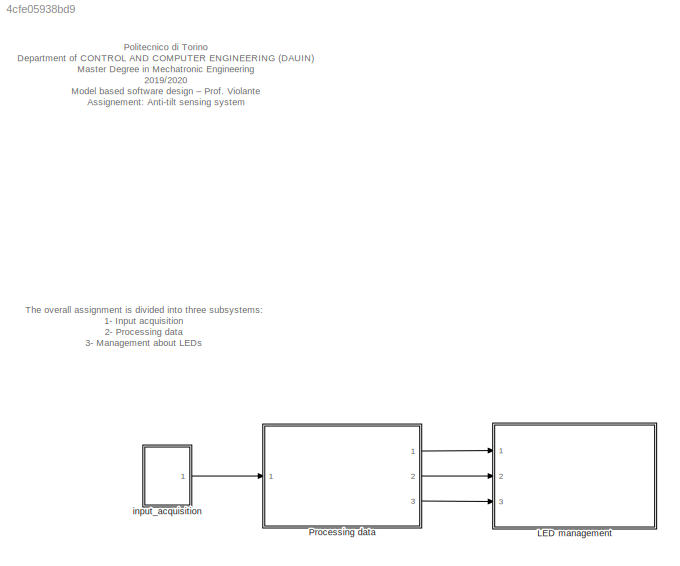
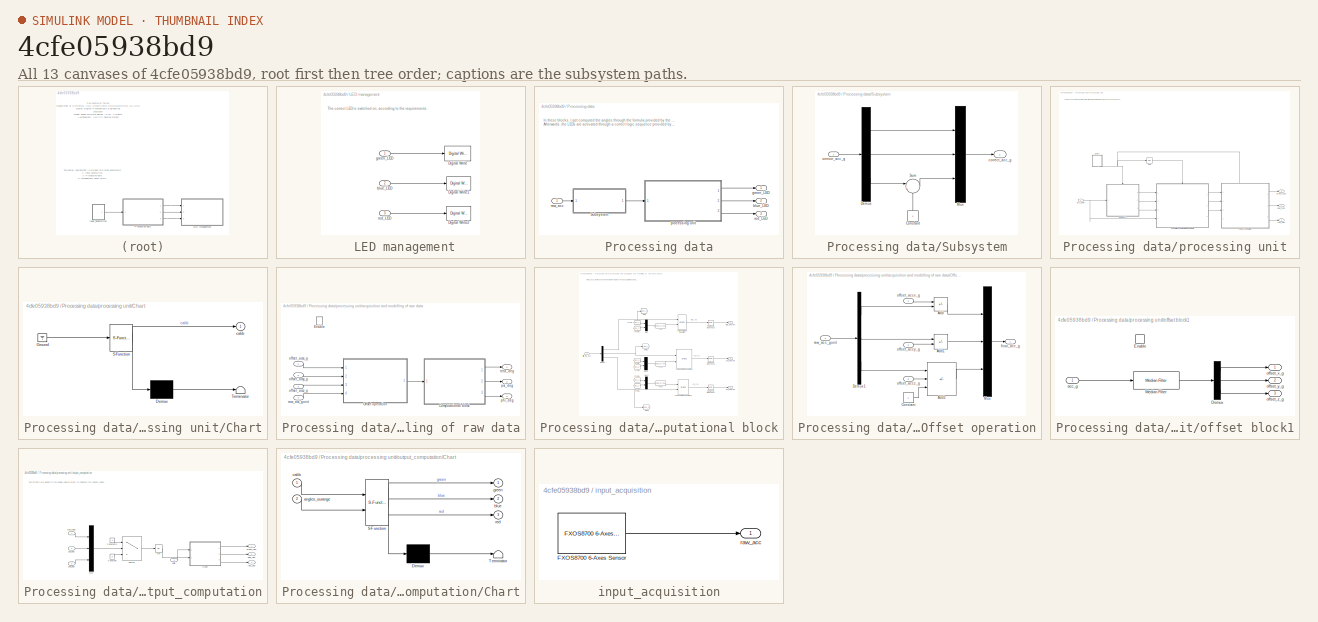
[diagram: thumbnail index - all 13 canvases of the model, root first then tree order]
MODEL slx_4cfe05938bd9
KIND model
CONFIG AbsTol = auto
CONFIG EnableMultiTasking = on
CONFIG FixedStep = 0.1
CONFIG MaxStep = auto
CONFIG MinStep = auto
CONFIG RelTol = 1e-3
CONFIG SampleTimeConstraint = Unconstrained
CONFIG Solver = FixedStepDiscrete
CONFIG SolverName = FixedStepDiscrete
CONFIG StartTime = 0.0
CONFIG StopTime = inf
BLOCK [SubSystem]  LED management
  Ports = [3]
  RequestExecContextInheritance = off
BLOCK [Reference]  LED management/Digital Write  REF=frdmk64flib/Digital Write
  Ports = [1]
  SourceBlock = frdmk64flib/Digital Write
  SourceProductBaseCode = EC_FRDM_K64F
  SourceType = freedomk64f.DigitalWrite
BLOCK [Reference]  LED management/Digital Write1  REF=frdmk64flib/Digital Write
  Ports = [1]
  SourceBlock = frdmk64flib/Digital Write
  SourceProductBaseCode = EC_FRDM_K64F
  SourceType = freedomk64f.DigitalWrite
BLOCK [Reference]  LED management/Digital Write2  REF=frdmk64flib/Digital Write
  Ports = [1]
  SourceBlock = frdmk64flib/Digital Write
  SourceProductBaseCode = EC_FRDM_K64F
  SourceType = freedomk64f.DigitalWrite
BLOCK [Inport]  LED management/blue_LED
  Port = 2
BLOCK [Inport]  LED management/green_LED
BLOCK [Inport]  LED management/red_LED
  Port = 3
BLOCK [SubSystem] Processing data
  Ports = [1, 3]
  RequestExecContextInheritance = off
BLOCK [SubSystem] Processing data/Subsystem
  Ports = [1, 1]
  RequestExecContextInheritance = off
BLOCK [Constant] Processing data/Subsystem/Constant
  NameLocation = right
BLOCK [Demux] Processing data/Subsystem/Demux
  Outputs = 3
  Ports = [1, 3]
BLOCK [Mux] Processing data/Subsystem/Mux
  DisplayOption = bar
  Inputs = 3
  Ports = [3, 1]
BLOCK [Sum] Processing data/Subsystem/Sum
  Inputs = |+-
  Ports = [2, 1]
BLOCK [Outport] Processing data/Subsystem/correct_acc_g
BLOCK [Inport] Processing data/Subsystem/sensor_acc_g
BLOCK [Outport] Processing data/blue_LED
  Port = 2
BLOCK [Outport] Processing data/green_LED
BLOCK [SubSystem] Processing data/processing unit
  Ports = [1, 3]
  RequestExecContextInheritance = off
BLOCK [SubSystem] Processing data/processing unit/Chart
  ErrorFcn = Stateflow.Translate.translate
  NameLocation = left
  PermitHierarchicalResolution = ExplicitOnly
  PortSchema = {"entries":[{"content":{"sides":[{"content":{"connectorIds":[]},"type":"ConnectorPlacement.EquallySpacedRectSide","uuid":"849f233e-f388-4235-a763-39289e6833f4"},{"content":{"connectorIds":[],"side":"RIGHT"},"type":"ConnectorPlacement.EquallySpacedRectSide","uuid":"02f40bd9-b98f-494b-865f-ff408e26e3ae"},{"content":{"connectorIds":["Out1"],"side":"TOP"},"type":"ConnectorPlacement.EquallySpacedRectSi...<+237ch>
  Ports = [0, 1]
  RequestExecContextInheritance = off
  SFBlockType = Chart
  TreatAsAtomicUnit = on
BLOCK [Demux] Processing data/processing unit/Chart/ Demux 
  Outputs = 1
  Ports = [1, 1]
BLOCK [Ground] Processing data/processing unit/Chart/ Ground 
BLOCK [S-Function] Processing data/processing unit/Chart/ SFunction 
  EnableBusSupport = on
  FunctionName = sf_sfun
  PortCounts = [1 2]
  Ports = [1, 2]
  SFcnIsStateOwnerBlock = off
  SFunctionDeploymentMode = off
  Tag = Stateflow S-Function 1
BLOCK [Terminator] Processing data/processing unit/Chart/ Terminator 
BLOCK [Outport] Processing data/processing unit/Chart/calib
BLOCK [Logic] Processing data/processing unit/NOT
  AllPortsSameDT = off
  IconShape = distinctive
  Operator = NOT
  OutDataTypeStr = boolean
  Ports = [1, 1]
BLOCK [Inport] Processing data/processing unit/acc_gunit
BLOCK [SubSystem] Processing data/processing unit/acquisition and modelling of raw data
  Ports = [4, 3, 1]
  RequestExecContextInheritance = off
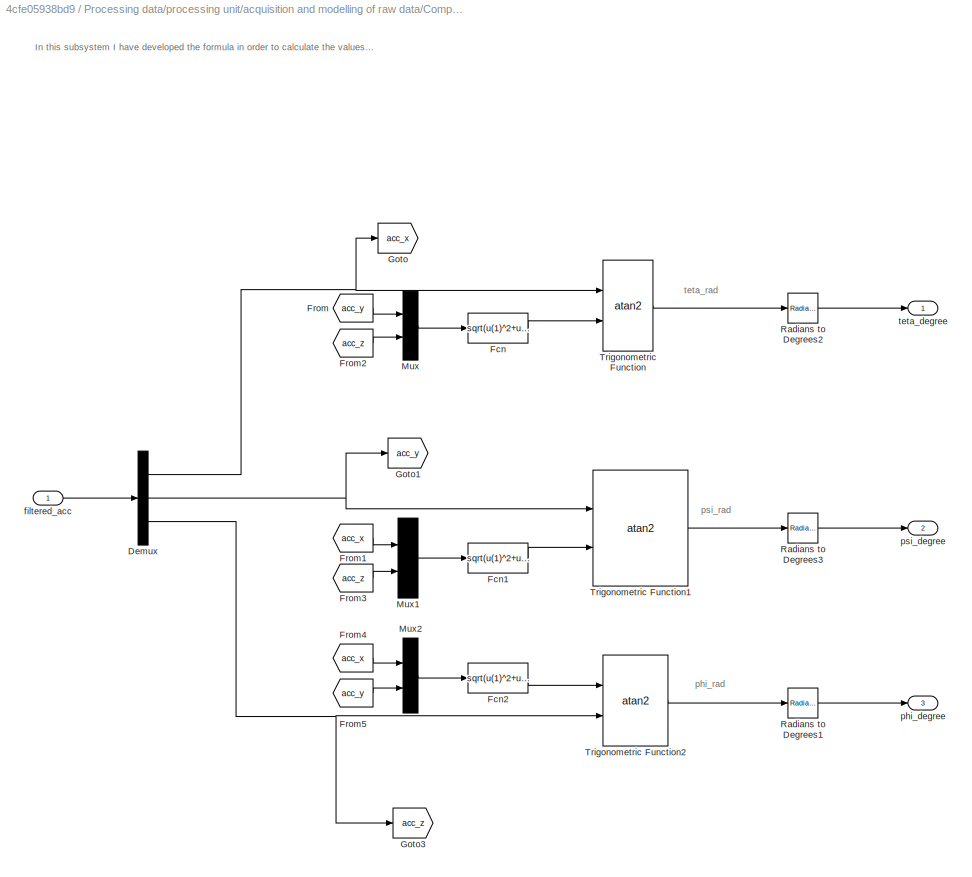
BLOCK [SubSystem] Processing data/processing unit/acquisition and modelling of raw data/Computational block
  Ports = [1, 3]
  RequestExecContextInheritance = off
BLOCK [Demux] Processing data/processing unit/acquisition and modelling of raw data/Computational block/Demux
  Outputs = 3
  Ports = [1, 3]
BLOCK [Fcn] Processing data/processing unit/acquisition and modelling of raw data/Computational block/Fcn
  Expr = sqrt(u(1)^2+u(2)^2)
BLOCK [Fcn] Processing data/processing unit/acquisition and modelling of raw data/Computational block/Fcn1
  Expr = sqrt(u(1)^2+u(2)^2)
BLOCK [Fcn] Processing data/processing unit/acquisition and modelling of raw data/Computational block/Fcn2
  Expr = sqrt(u(1)^2+u(2)^2)
BLOCK [From] Processing data/processing unit/acquisition and modelling of raw data/Computational block/From
  GotoTag = acc_y
BLOCK [From] Processing data/processing unit/acquisition and modelling of raw data/Computational block/From1
  GotoTag = acc_x
BLOCK [From] Processing data/processing unit/acquisition and modelling of raw data/Computational block/From2
  GotoTag = acc_z
BLOCK [From] Processing data/processing unit/acquisition and modelling of raw data/Computational block/From3
  GotoTag = acc_z
BLOCK [From] Processing data/processing unit/acquisition and modelling of raw data/Computational block/From4
  GotoTag = acc_x
BLOCK [From] Processing data/processing unit/acquisition and modelling of raw data/Computational block/From5
  GotoTag = acc_y
BLOCK [Goto] Processing data/processing unit/acquisition and modelling of raw data/Computational block/Goto
  GotoTag = acc_x
BLOCK [Goto] Processing data/processing unit/acquisition and modelling of raw data/Computational block/Goto1
  GotoTag = acc_y
BLOCK [Goto] Processing data/processing unit/acquisition and modelling of raw data/Computational block/Goto3
  GotoTag = acc_z
BLOCK [Mux] Processing data/processing unit/acquisition and modelling of raw data/Computational block/Mux
  DisplayOption = bar
  Inputs = 2
  Ports = [2, 1]
BLOCK [Mux] Processing data/processing unit/acquisition and modelling of raw data/Computational block/Mux1
  DisplayOption = bar
  Inputs = 2
  Ports = [2, 1]
BLOCK [Mux] Processing data/processing unit/acquisition and modelling of raw data/Computational block/Mux2
  DisplayOption = bar
  Inputs = 2
  Ports = [2, 1]
BLOCK [Reference] Processing data/processing unit/acquisition and modelling of raw data/Computational block/Radians to Degrees1  REF=simulink_extras/Transformations/Radians
to Degrees
  Ports = [1, 1]
  SourceBlock = simulink_extras/Transformations/Radians\nto Degrees
  SourceProductBaseCode = SL
  SourceType = RadiansToDegrees
BLOCK [Reference] Processing data/processing unit/acquisition and modelling of raw data/Computational block/Radians to Degrees2  REF=simulink_extras/Transformations/Radians
to Degrees
  Ports = [1, 1]
  SourceBlock = simulink_extras/Transformations/Radians\nto Degrees
  SourceProductBaseCode = SL
  SourceType = RadiansToDegrees
BLOCK [Reference] Processing data/processing unit/acquisition and modelling of raw data/Computational block/Radians to Degrees3  REF=simulink_extras/Transformations/Radians
to Degrees
  Ports = [1, 1]
  SourceBlock = simulink_extras/Transformations/Radians\nto Degrees
  SourceProductBaseCode = SL
  SourceType = RadiansToDegrees
BLOCK [Trigonometry] Processing data/processing unit/acquisition and modelling of raw data/Computational block/Trigonometric Function
  Operator = atan2
  Ports = [2, 1]
BLOCK [Trigonometry] Processing data/processing unit/acquisition and modelling of raw data/Computational block/Trigonometric Function1
  Operator = atan2
  Ports = [2, 1]
BLOCK [Trigonometry] Processing data/processing unit/acquisition and modelling of raw data/Computational block/Trigonometric Function2
  Operator = atan2
  Ports = [2, 1]
BLOCK [Inport] Processing data/processing unit/acquisition and modelling of raw data/Computational block/filtered_acc
BLOCK [Outport] Processing data/processing unit/acquisition and modelling of raw data/Computational block/phi_degree
  Port = 3
BLOCK [Outport] Processing data/processing unit/acquisition and modelling of raw data/Computational block/psi_degree
  Port = 2
BLOCK [Outport] Processing data/processing unit/acquisition and modelling of raw data/Computational block/teta_degree
BLOCK [EnablePort] Processing data/processing unit/acquisition and modelling of raw data/Enable
  Ports = []
BLOCK [SubSystem] Processing data/processing unit/acquisition and modelling of raw data/Offset operation
  Ports = [4, 1]
  RequestExecContextInheritance = off
BLOCK [Sum] Processing data/processing unit/acquisition and modelling of raw data/Offset operation/Add
  IconShape = rectangular
  Inputs = -+
  Ports = [2, 1]
BLOCK [Sum] Processing data/processing unit/acquisition and modelling of raw data/Offset operation/Add1
  IconShape = rectangular
  Inputs = +-
  Ports = [2, 1]
BLOCK [Sum] Processing data/processing unit/acquisition and modelling of raw data/Offset operation/Add2
  IconShape = rectangular
  Inputs = +-+
  Ports = [3, 1]
BLOCK [Constant] Processing data/processing unit/acquisition and modelling of raw data/Offset operation/Constant
BLOCK [Demux] Processing data/processing unit/acquisition and modelling of raw data/Offset operation/Demux1
  Outputs = 3
  Ports = [1, 3]
BLOCK [Mux] Processing data/processing unit/acquisition and modelling of raw data/Offset operation/Mux
  DisplayOption = bar
  Inputs = 3
  Ports = [3, 1]
BLOCK [Outport] Processing data/processing unit/acquisition and modelling of raw data/Offset operation/final_acc_g
BLOCK [Inport] Processing data/processing unit/acquisition and modelling of raw data/Offset operation/offset_accx_g
BLOCK [Inport] Processing data/processing unit/acquisition and modelling of raw data/Offset operation/offset_accy_g
  Port = 2
BLOCK [Inport] Processing data/processing unit/acquisition and modelling of raw data/Offset operation/offset_accz_g
  Port = 3
BLOCK [Inport] Processing data/processing unit/acquisition and modelling of raw data/Offset operation/raw_acc_gunit
  Port = 4
BLOCK [Inport] Processing data/processing unit/acquisition and modelling of raw data/offset_accx_g
BLOCK [Inport] Processing data/processing unit/acquisition and modelling of raw data/offset_accy_g
  Port = 2
BLOCK [Inport] Processing data/processing unit/acquisition and modelling of raw data/offset_accz_g
  Port = 3
BLOCK [Outport] Processing data/processing unit/acquisition and modelling of raw data/phi_deg
  Port = 3
BLOCK [Outport] Processing data/processing unit/acquisition and modelling of raw data/psi_deg
  Port = 2
BLOCK [Inport] Processing data/processing unit/acquisition and modelling of raw data/raw_acc_gunit
  Port = 4
BLOCK [Outport] Processing data/processing unit/acquisition and modelling of raw data/teta_deg
BLOCK [Outport] Processing data/processing unit/blue_LED
  Port = 2
BLOCK [Outport] Processing data/processing unit/green_LED
BLOCK [SubSystem] Processing data/processing unit/offset block1
  Ports = [1, 3, 1]
  RequestExecContextInheritance = off
BLOCK [Demux] Processing data/processing unit/offset block1/Demux
  Outputs = 3
  Ports = [1, 3]
BLOCK [EnablePort] Processing data/processing unit/offset block1/Enable
  Ports = []
BLOCK [Reference] Processing data/processing unit/offset block1/Median Filter  REF=dspstat3/Median
Filter
  Ports = [1, 1]
  SourceBlock = dspstat3/Median\nFilter
  SourceProductBaseCode = DS
  SourceType = dsp.MedianFilter
BLOCK [Inport] Processing data/processing unit/offset block1/acc_g
BLOCK [Outport] Processing data/processing unit/offset block1/offset_x_g
BLOCK [Outport] Processing data/processing unit/offset block1/offset_y_g
  Port = 2
BLOCK [Outport] Processing data/processing unit/offset block1/offset_z_g
  Port = 3
BLOCK [SubSystem] Processing data/processing unit/output_computation
  PortSchema = {"entries":[{"content":{"sides":[{"content":{"connectorIds":["In1","In2","In3"]},"type":"ConnectorPlacement.EquallySpacedRectSide","uuid":"60aea4be-a06d-4eda-a7bc-981b750d10d1"},{"content":{"connectorIds":["Out1","Out2","Out3"],"side":"RIGHT"},"type":"ConnectorPlacement.EquallySpacedRectSide","uuid":"1715f949-f62d-450d-8914-9423294c064a"},{"content":{"connectorIds":["In4"],"side":"TOP"},"type":"Co...<+273ch>
  Ports = [4, 3]
  RequestExecContextInheritance = off
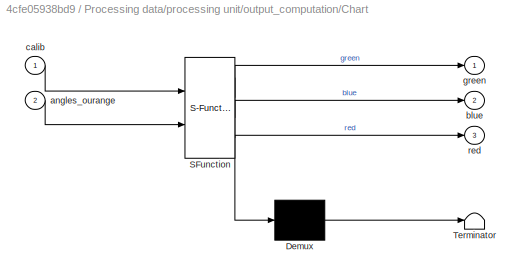
BLOCK [SubSystem] Processing data/processing unit/output_computation/Chart
  ErrorFcn = Stateflow.Translate.translate
  PermitHierarchicalResolution = ExplicitOnly
  PortSchema = {"entries":[{"content":{"sides":[{"content":{"connectorIds":["In2","In1"]},"type":"ConnectorPlacement.EquallySpacedRectSide","uuid":"faf833d6-594c-410a-add6-5ce55fbfaff1"},{"content":{"connectorIds":["Out1","Out2","Out3"],"side":"RIGHT"},"type":"ConnectorPlacement.EquallySpacedRectSide","uuid":"c32c7775-d168-4cbd-91e2-7224e6ac9991"},{"content":{"connectorIds":[],"side":"TOP"},"type":"ConnectorPlac...<+262ch>
  Ports = [2, 3]
  RequestExecContextInheritance = off
  SFBlockType = Chart
  TreatAsAtomicUnit = on
BLOCK [Demux] Processing data/processing unit/output_computation/Chart/ Demux 
  Outputs = 1
  Ports = [1, 1]
BLOCK [S-Function] Processing data/processing unit/output_computation/Chart/ SFunction 
  EnableBusSupport = on
  FunctionName = sf_sfun
  PortCounts = [2 4]
  Ports = [2, 4]
  SFcnIsStateOwnerBlock = off
  SFunctionDeploymentMode = off
  Tag = Stateflow S-Function 2
BLOCK [Terminator] Processing data/processing unit/output_computation/Chart/ Terminator 
BLOCK [Inport] Processing data/processing unit/output_computation/Chart/angles_ourange
  Port = 2
BLOCK [Outport] Processing data/processing unit/output_computation/Chart/blue
  Port = 2
BLOCK [Inport] Processing data/processing unit/output_computation/Chart/calib
BLOCK [Outport] Processing data/processing unit/output_computation/Chart/green
BLOCK [Outport] Processing data/processing unit/output_computation/Chart/red
  Port = 3
BLOCK [Constant] Processing data/processing unit/output_computation/Constant
  Value = 0
BLOCK [Constant] Processing data/processing unit/output_computation/Constant1
BLOCK [Mux] Processing data/processing unit/output_computation/Mux
  DisplayOption = bar
  Inputs = 3
  Ports = [3, 1]
BLOCK [Logic] Processing data/processing unit/output_computation/OR
  AllPortsSameDT = off
  IconShape = distinctive
  Inputs = 1
  Operator = OR
  OutDataTypeStr = boolean
  Ports = [1, 1]
BLOCK [Switch] Processing data/processing unit/output_computation/Switch
  Criteria = u2 > Threshold
  InputSameDT = off
  SaturateOnIntegerOverflow = off
  Threshold = 15
BLOCK [Outport] Processing data/processing unit/output_computation/blue_LED
  Port = 2
BLOCK [Inport] Processing data/processing unit/output_computation/calib
  Port = 4
BLOCK [Outport] Processing data/processing unit/output_computation/green_LED
BLOCK [Inport] Processing data/processing unit/output_computation/phi_deg
  Port = 3
BLOCK [Inport] Processing data/processing unit/output_computation/psi_deg
  Port = 2
BLOCK [Outport] Processing data/processing unit/output_computation/red_LED
  Port = 3
BLOCK [Inport] Processing data/processing unit/output_computation/teta_deg
BLOCK [Outport] Processing data/processing unit/red_LED
  Port = 3
BLOCK [Inport] Processing data/raw_acc
BLOCK [Outport] Processing data/red_LED
  Port = 3
BLOCK [SubSystem] input_acquisition
  Ports = [0, 1]
  RequestExecContextInheritance = off
BLOCK [Reference] input_acquisition/FXOS8700 6-Axes Sensor  REF=frdmk64flib/FXOS8700 6-Axes Sensor
  Ports = [0, 1]
  SourceBlock = frdmk64flib/FXOS8700 6-Axes Sensor
  SourceProductBaseCode = EC_FRDM_K64F
  SourceType = freedomk64f.fxos8700
BLOCK [Outport] input_acquisition/raw_acc
ANNOTATION (root): Politecnico di Torino Department of CONTROL AND COMPUTER ENGINEERING (DAUIN) Master Degree in Mechatronic Engineering 2019/2020 Model based software design – Prof. Violante Assignement: Anti-tilt sensing system S277536- Marchionna Luca
ANNOTATION (root): The overall assignment is divided into three subsystems: 1- Input acquisition 2- Processing data 3- Management about LEDs
ANNOTATION  LED management: The correct LED is switched on, according to the requirements.
ANNOTATION Processing data: In these blocks, I get computed the angles through the formula provided by the text exercise. The acquisition data are driven towards the calibration block in order to provide a correct offset. In the normal mode, filtering and output computation have been performed. Afterwards, the LEDs are activated through a correct logic sequence provided by the stateflow. During the calibration only the blue ...<+131ch>
ANNOTATION Processing data/processing unit: The process starts and the calibration mode get begins. This sub-process is repeated for 20 seconds until the calibration goes off (calib=0). As we can see, the output computaion is denied for this time since no output needs. After the calibration step, the output computation can starts.
ANNOTATION Processing data/processing unit/acquisition and modelling of raw data/Computational block: phi_rad
ANNOTATION Processing data/processing unit/acquisition and modelling of raw data/Computational block: psi_rad
ANNOTATION Processing data/processing unit/acquisition and modelling of raw data/Computational block: teta_rad
ANNOTATION Processing data/processing unit/acquisition and modelling of raw data/Computational block: In this subsystem I have developed the formula in order to calculate the values about the angles. Furthermore, the final values are provided in degrees.
ANNOTATION Processing data/processing unit/output_computation: The offsets are added to the angles value in order to minimize the random noise. Furthermore, the corrected values are compared with the thresold voltage (15 degrees). In this way, we can highlights the angles that exceed this thresold value.
LINE  LED management/blue_LED:1 ->  LED management/Digital Write1:1
LINE  LED management/green_LED:1 ->  LED management/Digital Write:1
LINE  LED management/red_LED:1 ->  LED management/Digital Write2:1
LINE Processing data/Subsystem/Constant:1 -> Processing data/Subsystem/Sum:2
LINE Processing data/Subsystem/Demux:1 -> Processing data/Subsystem/Mux:1
LINE Processing data/Subsystem/Demux:2 -> Processing data/Subsystem/Mux:2
LINE Processing data/Subsystem/Demux:3 -> Processing data/Subsystem/Sum:1
LINE Processing data/Subsystem/Mux:1 -> Processing data/Subsystem/correct_acc_g:1
LINE Processing data/Subsystem/Sum:1 -> Processing data/Subsystem/Mux:3
LINE Processing data/Subsystem/sensor_acc_g:1 -> Processing data/Subsystem/Demux:1
LINE Processing data/Subsystem:1 -> Processing data/processing unit:1
NET Processing data/processing unit/Chart:1 -> Processing data/processing unit/NOT:1, Processing data/processing unit/offset block1:enable, Processing data/processing unit/output_computation:4
LINE Processing data/processing unit/NOT:1 -> Processing data/processing unit/acquisition and modelling of raw data:enable
NET Processing data/processing unit/acc_gunit:1 -> Processing data/processing unit/acquisition and modelling of raw data:4, Processing data/processing unit/offset block1:1
NET Processing data/processing unit/acquisition and modelling of raw data/Computational block/Demux:1 -> Processing data/processing unit/acquisition and modelling of raw data/Computational block/Goto:1, Processing data/processing unit/acquisition and modelling of raw data/Computational block/Trigonometric Function:1
NET Processing data/processing unit/acquisition and modelling of raw data/Computational block/Demux:2 -> Processing data/processing unit/acquisition and modelling of raw data/Computational block/Goto1:1, Processing data/processing unit/acquisition and modelling of raw data/Computational block/Trigonometric Function1:1
NET Processing data/processing unit/acquisition and modelling of raw data/Computational block/Demux:3 -> Processing data/processing unit/acquisition and modelling of raw data/Computational block/Goto3:1, Processing data/processing unit/acquisition and modelling of raw data/Computational block/Trigonometric Function2:2
LINE Processing data/processing unit/acquisition and modelling of raw data/Computational block/Fcn1:1 -> Processing data/processing unit/acquisition and modelling of raw data/Computational block/Trigonometric Function1:2
LINE Processing data/processing unit/acquisition and modelling of raw data/Computational block/Fcn2:1 -> Processing data/processing unit/acquisition and modelling of raw data/Computational block/Trigonometric Function2:1
LINE Processing data/processing unit/acquisition and modelling of raw data/Computational block/Fcn:1 -> Processing data/processing unit/acquisition and modelling of raw data/Computational block/Trigonometric Function:2
LINE Processing data/processing unit/acquisition and modelling of raw data/Computational block/From1:1 -> Processing data/processing unit/acquisition and modelling of raw data/Computational block/Mux1:1
LINE Processing data/processing unit/acquisition and modelling of raw data/Computational block/From2:1 -> Processing data/processing unit/acquisition and modelling of raw data/Computational block/Mux:2
LINE Processing data/processing unit/acquisition and modelling of raw data/Computational block/From3:1 -> Processing data/processing unit/acquisition and modelling of raw data/Computational block/Mux1:2
LINE Processing data/processing unit/acquisition and modelling of raw data/Computational block/From4:1 -> Processing data/processing unit/acquisition and modelling of raw data/Computational block/Mux2:1
LINE Processing data/processing unit/acquisition and modelling of raw data/Computational block/From5:1 -> Processing data/processing unit/acquisition and modelling of raw data/Computational block/Mux2:2
LINE Processing data/processing unit/acquisition and modelling of raw data/Computational block/From:1 -> Processing data/processing unit/acquisition and modelling of raw data/Computational block/Mux:1
LINE Processing data/processing unit/acquisition and modelling of raw data/Computational block/Mux1:1 -> Processing data/processing unit/acquisition and modelling of raw data/Computational block/Fcn1:1
LINE Processing data/processing unit/acquisition and modelling of raw data/Computational block/Mux2:1 -> Processing data/processing unit/acquisition and modelling of raw data/Computational block/Fcn2:1
LINE Processing data/processing unit/acquisition and modelling of raw data/Computational block/Mux:1 -> Processing data/processing unit/acquisition and modelling of raw data/Computational block/Fcn:1
LINE Processing data/processing unit/acquisition and modelling of raw data/Computational block/Radians to Degrees1:1 -> Processing data/processing unit/acquisition and modelling of raw data/Computational block/phi_degree:1
LINE Processing data/processing unit/acquisition and modelling of raw data/Computational block/Radians to Degrees2:1 -> Processing data/processing unit/acquisition and modelling of raw data/Computational block/teta_degree:1
LINE Processing data/processing unit/acquisition and modelling of raw data/Computational block/Radians to Degrees3:1 -> Processing data/processing unit/acquisition and modelling of raw data/Computational block/psi_degree:1
LINE Processing data/processing unit/acquisition and modelling of raw data/Computational block/Trigonometric Function1:1 -> Processing data/processing unit/acquisition and modelling of raw data/Computational block/Radians to Degrees3:1
LINE Processing data/processing unit/acquisition and modelling of raw data/Computational block/Trigonometric Function2:1 -> Processing data/processing unit/acquisition and modelling of raw data/Computational block/Radians to Degrees1:1
LINE Processing data/processing unit/acquisition and modelling of raw data/Computational block/Trigonometric Function:1 -> Processing data/processing unit/acquisition and modelling of raw data/Computational block/Radians to Degrees2:1
LINE Processing data/processing unit/acquisition and modelling of raw data/Computational block/filtered_acc:1 -> Processing data/processing unit/acquisition and modelling of raw data/Computational block/Demux:1
LINE Processing data/processing unit/acquisition and modelling of raw data/Computational block:1 -> Processing data/processing unit/acquisition and modelling of raw data/teta_deg:1
LINE Processing data/processing unit/acquisition and modelling of raw data/Computational block:2 -> Processing data/processing unit/acquisition and modelling of raw data/psi_deg:1
LINE Processing data/processing unit/acquisition and modelling of raw data/Computational block:3 -> Processing data/processing unit/acquisition and modelling of raw data/phi_deg:1
LINE Processing data/processing unit/acquisition and modelling of raw data/Offset operation/Add1:1 -> Processing data/processing unit/acquisition and modelling of raw data/Offset operation/Mux:2
LINE Processing data/processing unit/acquisition and modelling of raw data/Offset operation/Add2:1 -> Processing data/processing unit/acquisition and modelling of raw data/Offset operation/Mux:3
LINE Processing data/processing unit/acquisition and modelling of raw data/Offset operation/Add:1 -> Processing data/processing unit/acquisition and modelling of raw data/Offset operation/Mux:1
LINE Processing data/processing unit/acquisition and modelling of raw data/Offset operation/Constant:1 -> Processing data/processing unit/acquisition and modelling of raw data/Offset operation/Add2:3
LINE Processing data/processing unit/acquisition and modelling of raw data/Offset operation/Demux1:1 -> Processing data/processing unit/acquisition and modelling of raw data/Offset operation/Add:2
LINE Processing data/processing unit/acquisition and modelling of raw data/Offset operation/Demux1:2 -> Processing data/processing unit/acquisition and modelling of raw data/Offset operation/Add1:1
LINE Processing data/processing unit/acquisition and modelling of raw data/Offset operation/Demux1:3 -> Processing data/processing unit/acquisition and modelling of raw data/Offset operation/Add2:1
LINE Processing data/processing unit/acquisition and modelling of raw data/Offset operation/Mux:1 -> Processing data/processing unit/acquisition and modelling of raw data/Offset operation/final_acc_g:1
LINE Processing data/processing unit/acquisition and modelling of raw data/Offset operation/offset_accx_g:1 -> Processing data/processing unit/acquisition and modelling of raw data/Offset operation/Add:1
LINE Processing data/processing unit/acquisition and modelling of raw data/Offset operation/offset_accy_g:1 -> Processing data/processing unit/acquisition and modelling of raw data/Offset operation/Add1:2
LINE Processing data/processing unit/acquisition and modelling of raw data/Offset operation/offset_accz_g:1 -> Processing data/processing unit/acquisition and modelling of raw data/Offset operation/Add2:2
LINE Processing data/processing unit/acquisition and modelling of raw data/Offset operation/raw_acc_gunit:1 -> Processing data/processing unit/acquisition and modelling of raw data/Offset operation/Demux1:1
LINE Processing data/processing unit/acquisition and modelling of raw data/Offset operation:1 -> Processing data/processing unit/acquisition and modelling of raw data/Computational block:1
LINE Processing data/processing unit/acquisition and modelling of raw data/offset_accx_g:1 -> Processing data/processing unit/acquisition and modelling of raw data/Offset operation:1
LINE Processing data/processing unit/acquisition and modelling of raw data/offset_accy_g:1 -> Processing data/processing unit/acquisition and modelling of raw data/Offset operation:2
LINE Processing data/processing unit/acquisition and modelling of raw data/offset_accz_g:1 -> Processing data/processing unit/acquisition and modelling of raw data/Offset operation:3
LINE Processing data/processing unit/acquisition and modelling of raw data/raw_acc_gunit:1 -> Processing data/processing unit/acquisition and modelling of raw data/Offset operation:4
LINE Processing data/processing unit/acquisition and modelling of raw data:1 -> Processing data/processing unit/output_computation:1
LINE Processing data/processing unit/acquisition and modelling of raw data:2 -> Processing data/processing unit/output_computation:2
LINE Processing data/processing unit/acquisition and modelling of raw data:3 -> Processing data/processing unit/output_computation:3
LINE Processing data/processing unit/offset block1/Demux:1 -> Processing data/processing unit/offset block1/offset_x_g:1
LINE Processing data/processing unit/offset block1/Demux:2 -> Processing data/processing unit/offset block1/offset_y_g:1
LINE Processing data/processing unit/offset block1/Demux:3 -> Processing data/processing unit/offset block1/offset_z_g:1
LINE Processing data/processing unit/offset block1/Median Filter:1 -> Processing data/processing unit/offset block1/Demux:1
LINE Processing data/processing unit/offset block1/acc_g:1 -> Processing data/processing unit/offset block1/Median Filter:1
LINE Processing data/processing unit/offset block1:1 -> Processing data/processing unit/acquisition and modelling of raw data:1
LINE Processing data/processing unit/offset block1:2 -> Processing data/processing unit/acquisition and modelling of raw data:2
LINE Processing data/processing unit/offset block1:3 -> Processing data/processing unit/acquisition and modelling of raw data:3
LINE Processing data/processing unit/output_computation/Chart:1 -> Processing data/processing unit/output_computation/green_LED:1
LINE Processing data/processing unit/output_computation/Chart:2 -> Processing data/processing unit/output_computation/blue_LED:1
LINE Processing data/processing unit/output_computation/Chart:3 -> Processing data/processing unit/output_computation/red_LED:1
LINE Processing data/processing unit/output_computation/Constant1:1 -> Processing data/processing unit/output_computation/Switch:1
LINE Processing data/processing unit/output_computation/Constant:1 -> Processing data/processing unit/output_computation/Switch:3
LINE Processing data/processing unit/output_computation/Mux:1 -> Processing data/processing unit/output_computation/Switch:2
LINE Processing data/processing unit/output_computation/OR:1 -> Processing data/processing unit/output_computation/Chart:2
LINE Processing data/processing unit/output_computation/Switch:1 -> Processing data/processing unit/output_computation/OR:1
LINE Processing data/processing unit/output_computation/calib:1 -> Processing data/processing unit/output_computation/Chart:1
LINE Processing data/processing unit/output_computation/phi_deg:1 -> Processing data/processing unit/output_computation/Mux:3
LINE Processing data/processing unit/output_computation/psi_deg:1 -> Processing data/processing unit/output_computation/Mux:2
LINE Processing data/processing unit/output_computation/teta_deg:1 -> Processing data/processing unit/output_computation/Mux:1
LINE Processing data/processing unit/output_computation:1 -> Processing data/processing unit/green_LED:1
LINE Processing data/processing unit/output_computation:2 -> Processing data/processing unit/blue_LED:1
LINE Processing data/processing unit/output_computation:3 -> Processing data/processing unit/red_LED:1
LINE Processing data/processing unit:1 -> Processing data/green_LED:1
LINE Processing data/processing unit:2 -> Processing data/blue_LED:1
LINE Processing data/processing unit:3 -> Processing data/red_LED:1
LINE Processing data/raw_acc:1 -> Processing data/Subsystem:1
LINE Processing data:1 ->  LED management:1
LINE Processing data:2 ->  LED management:2
LINE Processing data:3 ->  LED management:3
LINE input_acquisition/FXOS8700 6-Axes Sensor:1 -> input_acquisition/raw_acc:1
LINE input_acquisition:1 -> Processing data:1
note: NET lines group one-source signal fan-out (src -> all destinations, sorted); 1:1 wires keep LINE
CHART Processing data/processing unit/Chart states=2 transitions=2
  STATE_LABEL 'calibration\nen:\ncalib=1;\n'
  STATE_LABEL 'calibration1\nen:\ncalib=0;\n'
CHART Processing data/processing unit/output_computation/Chart states=6 transitions=8
  STATE_LABEL 'LED_inizialization\nen: blue=0;\n green=0;\n red=0;\n'
  STATE_LABEL 'LED_structureforcalibration\nen: blue=1;\n green=0;\n red=0;\n'
  STATE_LABEL 'LED_structureforinclination\nen: blue=0;\n'
  STATE_LABEL 'inclination_\ngreen=1;\nred=0;'
  STATE_LABEL 'warning1\nred=1;\ngreen=0;'
  STATE_LABEL 'no_warning\nred=0;\ngreen=1;'
  STATE_LABEL '[angles_ourange==1]'
  STATE_LABEL '[angles_ourange==0]'
  STATE_LABEL '[angles_ourange==1]'
  STATE_LABEL '[angles_ourange==0]'
  STATE_LABEL 'inclination_\ngreen=1;\nred=0;'
  STATE_LABEL 'warning1\nred=1;\ngreen=0;'
  STATE_LABEL 'no_warning\nred=0;\ngreen=1;'
CHART  states=0 transitions=0
CHART  states=0 transitions=0
